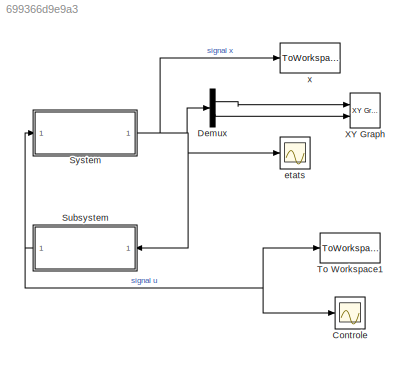
MODEL slx_699366d9e9a3
KIND model
CONFIG AbsTol = auto
CONFIG EnableMultiTasking = off
CONFIG FixedStep = auto
CONFIG MaxStep = auto
CONFIG MinStep = auto
CONFIG RelTol = 1e-3
CONFIG SampleTimeConstraint = Unconstrained
CONFIG Solver = ode23t
CONFIG SolverName = ode23t
CONFIG StartTime = 0.0
CONFIG StopTime = 1000
BLOCK [Scope] Controle
  Floating = off
  NumInputPorts = 1
  Ports = [1]
  ScopeSpecificationString = Simulink.scopes.TimeScopeBlockCfg('CurrentConfiguration', extmgr.ConfigurationSet(extmgr.Configuration('Core','General UI',true),extmgr.Configuration('Core','Source UI',true),extmgr.Configuration('Sources','WiredSimulink',true,'DataLoggingVariableName','ScopeData1'),extmgr.Configuration('Visuals','Time Domain',true,'SerializedDisplays',{struct('MinYLimReal','-86.8188','MaxYLimReal','86.82173','YLa...<+1426ch>
BLOCK [Demux] Demux
  DisplayOption = bar
  Outputs = 2
  Ports = [1, 2]
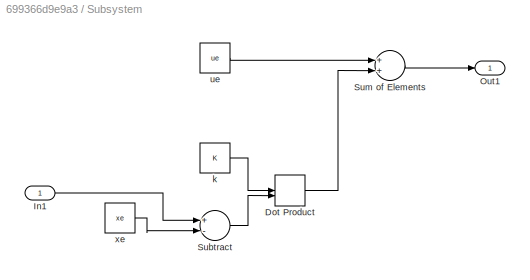
BLOCK [SubSystem] Subsystem
  Ports = [1, 1]
  RequestExecContextInheritance = off
BLOCK [DotProduct] Subsystem/Dot Product
  OutDataTypeStr = Inherit: Inherit via internal rule
BLOCK [Inport] Subsystem/In1
  IconDisplay = Port number
BLOCK [Outport] Subsystem/Out1
  IconDisplay = Port number
BLOCK [Sum] Subsystem/Subtract
  InputSameDT = off
  Inputs = +-
  OutDataTypeStr = Inherit: Inherit via internal rule
  Ports = [2, 1]
  SaturateOnIntegerOverflow = off
BLOCK [Sum] Subsystem/Sum of Elements
  InputSameDT = off
  OutDataTypeStr = Inherit: Inherit via internal rule
  Ports = [2, 1]
  SaturateOnIntegerOverflow = off
BLOCK [Constant] Subsystem/k
  Value = K
BLOCK [Constant] Subsystem/ue
  Value = ue
BLOCK [Constant] Subsystem/xe
  Value = xe
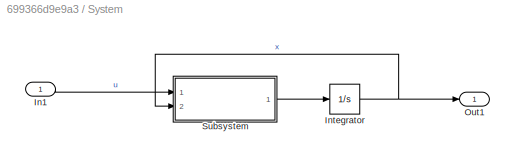
BLOCK [SubSystem] System
  Ports = [1, 1]
  RequestExecContextInheritance = off
BLOCK [Inport] System/In1
  IconDisplay = Port number
BLOCK [Integrator] System/Integrator
  InitialCondition = -1
  Ports = [1, 1]
BLOCK [Outport] System/Out1
  IconDisplay = Port number
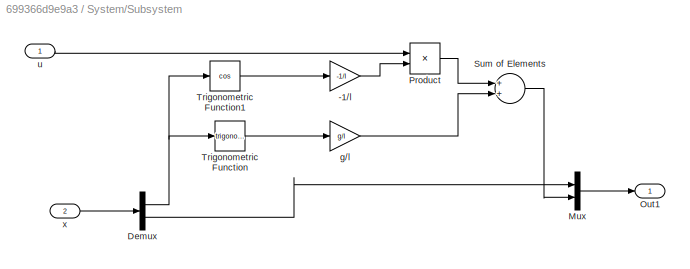
BLOCK [SubSystem] System/Subsystem
  Ports = [2, 1]
  RequestExecContextInheritance = off
BLOCK [Gain] System/Subsystem/-1//l
  Gain = -1/l
  OutDataTypeStr = Inherit: Inherit via internal rule
  ParamDataTypeStr = Inherit: Inherit via internal rule
  SaturateOnIntegerOverflow = off
BLOCK [Demux] System/Subsystem/Demux
  DisplayOption = bar
  Outputs = 2
  Ports = [1, 2]
BLOCK [Mux] System/Subsystem/Mux
  DisplayOption = bar
  Inputs = 2
  Ports = [2, 1]
BLOCK [Outport] System/Subsystem/Out1
  IconDisplay = Port number
BLOCK [Product] System/Subsystem/Product
  InputSameDT = off
  OutDataTypeStr = Inherit: Inherit via internal rule
  Ports = [2, 1]
  RndMeth = Floor
  SaturateOnIntegerOverflow = off
BLOCK [Sum] System/Subsystem/Sum of Elements
  InputSameDT = off
  OutDataTypeStr = Inherit: Inherit via internal rule
  Ports = [2, 1]
  SaturateOnIntegerOverflow = off
BLOCK [Trigonometry] System/Subsystem/Trigonometric Function
  Ports = [1, 1]
BLOCK [Trigonometry] System/Subsystem/Trigonometric Function1
  Operator = cos
  Ports = [1, 1]
BLOCK [Gain] System/Subsystem/g//l
  Gain = g/l
  OutDataTypeStr = Inherit: Inherit via internal rule
  ParamDataTypeStr = Inherit: Inherit via internal rule
  SaturateOnIntegerOverflow = off
BLOCK [Inport] System/Subsystem/u
  IconDisplay = Port number
BLOCK [Inport] System/Subsystem/x
  IconDisplay = Port number
  Port = 2
BLOCK [ToWorkspace] To Workspace1
  FixptAsFi = on
  MaxDataPoints = inf
  Ports = [1]
  SampleTime = -1
  SaveFormat = Timeseries
  VariableName = U
BLOCK [Reference] XY Graph  REF=simulink/Sinks/XY Graph
  Ports = [2]
  SourceBlock = simulink/Sinks/XY Graph
  SourceProductBaseCode = SL
  SourceProductName = Simulink
  SourceType = XY scope.
BLOCK [Scope] etats
  Floating = off
  NumInputPorts = 1
  Ports = [1]
  ScopeSpecificationString = Simulink.scopes.TimeScopeBlockCfg('CurrentConfiguration', extmgr.ConfigurationSet(extmgr.Configuration('Core','General UI',true),extmgr.Configuration('Core','Source UI',true),extmgr.Configuration('Sources','WiredSimulink',true),extmgr.Configuration('Visuals','Time Domain',true,'SerializedDisplays',{struct('MinYLimReal','-8.65001','MaxYLimReal','8.64696','YLabelReal','','MinYLimMag','0.00000','MaxY...<+1397ch>
BLOCK [ToWorkspace] x
  FixptAsFi = on
  MaxDataPoints = inf
  Ports = [1]
  SampleTime = -1
  SaveFormat = Timeseries
  VariableName = X
LINE Demux:1 -> XY Graph:1
LINE Demux:2 -> XY Graph:2
LINE Subsystem/Dot Product:1 -> Subsystem/Sum of Elements:2
LINE Subsystem/In1:1 -> Subsystem/Subtract:1
LINE Subsystem/Subtract:1 -> Subsystem/Dot Product:2
LINE Subsystem/Sum of Elements:1 -> Subsystem/Out1:1
LINE Subsystem/k:1 -> Subsystem/Dot Product:1
LINE Subsystem/ue:1 -> Subsystem/Sum of Elements:1
LINE Subsystem/xe:1 -> Subsystem/Subtract:2
NET Subsystem:1 -> Controle:1, System:1, To Workspace1:1
LINE System/In1:1 -> System/Subsystem:1
NET System/Integrator:1 -> System/Out1:1, System/Subsystem:2
LINE System/Subsystem/-1//l:1 -> System/Subsystem/Product:2
NET System/Subsystem/Demux:1 -> System/Subsystem/Trigonometric Function1:1, System/Subsystem/Trigonometric Function:1
LINE System/Subsystem/Demux:2 -> System/Subsystem/Mux:1
LINE System/Subsystem/Mux:1 -> System/Subsystem/Out1:1
LINE System/Subsystem/Product:1 -> System/Subsystem/Sum of Elements:1
LINE System/Subsystem/Sum of Elements:1 -> System/Subsystem/Mux:2
LINE System/Subsystem/Trigonometric Function1:1 -> System/Subsystem/-1//l:1
LINE System/Subsystem/Trigonometric Function:1 -> System/Subsystem/g//l:1
LINE System/Subsystem/g//l:1 -> System/Subsystem/Sum of Elements:2
LINE System/Subsystem/u:1 -> System/Subsystem/Product:1
LINE System/Subsystem/x:1 -> System/Subsystem/Demux:1
LINE System/Subsystem:1 -> System/Integrator:1
NET System:1 -> Demux:1, Subsystem:1, etats:1, x:1
note: NET lines group one-source signal fan-out (src -> all destinations, sorted); 1:1 wires keep LINE
